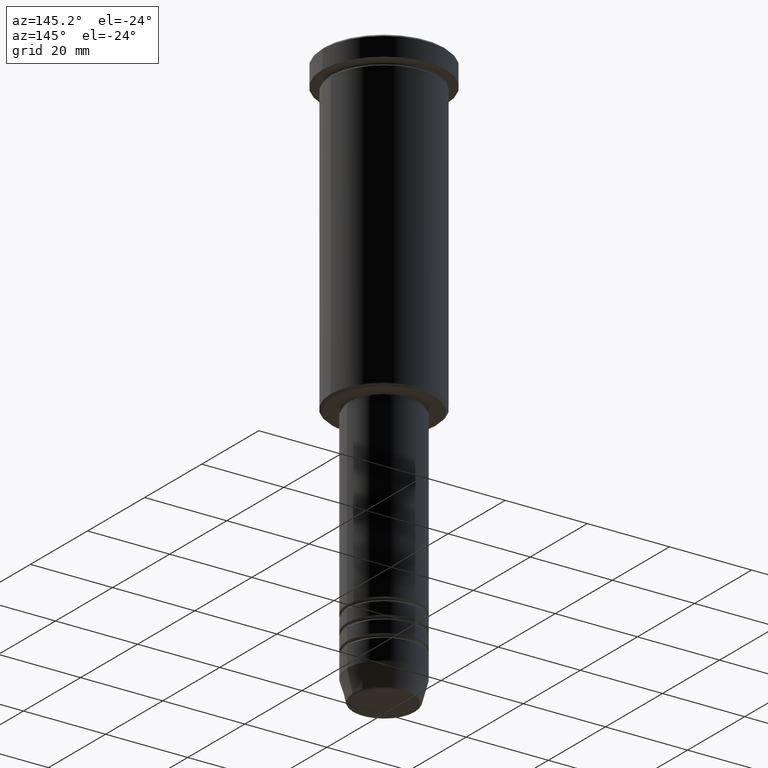
[diagram: clean part render]
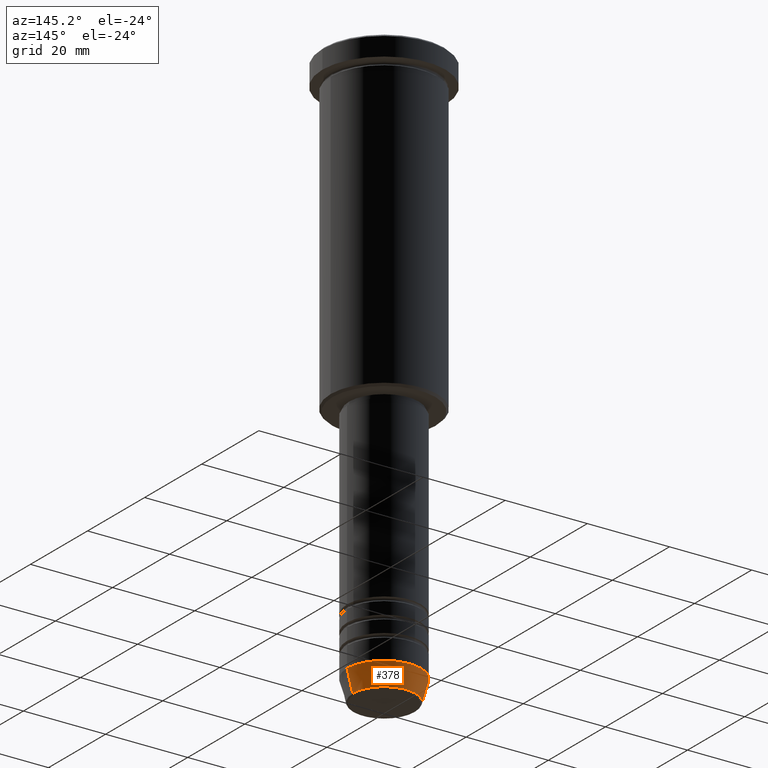
[diagram: same view with one face highlighted and labeled with its STEP entity id]
A machine part, auxiliary view. The second image highlights one B-rep face of the part: STEP entity #378.
In plain terms, the highlighted conical surface has half-angle 15 deg.
Its self-contained STEP definition (entity closure, byte-faithful):
#45 = ORIENTED_EDGE ( 'NONE', *, *, #905, .F. ) ;
#127 = AXIS2_PLACEMENT_3D ( 'NONE', #1026, #653, #947 ) ;
#129 = VECTOR ( 'NONE', #634, 1000.000000000000000 ) ;
#134 = LINE ( 'NONE', #145, #418 ) ;
#145 = CARTESIAN_POINT ( 'NONE',  ( 9.000000000000001776, 0.000000000000000000, -134.5000000000000000 ) ) ;
#146 = CARTESIAN_POINT ( 'NONE',  ( -7.625578860783880586, 1.018023096791544096E-15, -139.6294095225512706 ) ) ;
#177 = LINE ( 'NONE', #542, #129 ) ;
#240 = EDGE_CURVE ( 'NONE', #628, #364, #397, .T. ) ;
#241 = CARTESIAN_POINT ( 'NONE',  ( 0.000000000000000000, 0.000000000000000000, -134.5000000000000000 ) ) ;
#269 = ORIENTED_EDGE ( 'NONE', *, *, #327, .F. ) ;
#300 = CONICAL_SURFACE ( 'NONE', #337, 9.000000000000001776, 0.2617993877991501295 ) ;
#327 = EDGE_CURVE ( 'NONE', #1060, #394, #973, .T. ) ;
#337 = AXIS2_PLACEMENT_3D ( 'NONE', #241, #504, #694 ) ;
#364 = VERTEX_POINT ( 'NONE', #146 ) ;
#378 = ADVANCED_FACE ( 'NONE', ( #788 ), #300, .T. ) ;
#391 = ORIENTED_EDGE ( 'NONE', *, *, #240, .T. ) ;
#394 = VERTEX_POINT ( 'NONE', #602 ) ;
#397 = CIRCLE ( 'NONE', #127, 7.625578860783879698 ) ;
#418 = VECTOR ( 'NONE', #420, 1000.000000000000000 ) ;
#420 = DIRECTION ( 'NONE',  ( 0.2588190451025214056, 0.000000000000000000, 0.9659258262890680902 ) ) ;
#466 = DIRECTION ( 'NONE',  ( -0.000000000000000000, -0.000000000000000000, 1.000000000000000000 ) ) ;
#492 = AXIS2_PLACEMENT_3D ( 'NONE', #856, #466, #764 ) ;
#504 = DIRECTION ( 'NONE',  ( -0.000000000000000000, -0.000000000000000000, 1.000000000000000000 ) ) ;
#542 = CARTESIAN_POINT ( 'NONE',  ( -9.000000000000001776, 1.102182119232617911E-15, -134.5000000000000000 ) ) ;
#596 = EDGE_CURVE ( 'NONE', #364, #394, #177, .T. ) ;
#602 = CARTESIAN_POINT ( 'NONE',  ( -9.000000000000001776, 1.102182119232617911E-15, -134.5000000000000000 ) ) ;
#628 = VERTEX_POINT ( 'NONE', #914 ) ;
#634 = DIRECTION ( 'NONE',  ( -0.2588190451025214056, 3.169619151431772953E-17, 0.9659258262890680902 ) ) ;
#653 = DIRECTION ( 'NONE',  ( -0.000000000000000000, -0.000000000000000000, 1.000000000000000000 ) ) ;
#694 = DIRECTION ( 'NONE',  ( 1.000000000000000000, 0.000000000000000000, 0.000000000000000000 ) ) ;
#732 = EDGE_LOOP ( 'NONE', ( #391, #1155, #269, #45 ) ) ;
#764 = DIRECTION ( 'NONE',  ( 1.000000000000000000, 0.000000000000000000, 0.000000000000000000 ) ) ;
#788 = FACE_OUTER_BOUND ( 'NONE', #732, .T. ) ;
#805 = CARTESIAN_POINT ( 'NONE',  ( 9.000000000000001776, 0.000000000000000000, -134.5000000000000000 ) ) ;
#856 = CARTESIAN_POINT ( 'NONE',  ( 0.000000000000000000, 0.000000000000000000, -134.5000000000000000 ) ) ;
#905 = EDGE_CURVE ( 'NONE', #628, #1060, #134, .T. ) ;
#914 = CARTESIAN_POINT ( 'NONE',  ( 7.625578860783879698, 0.000000000000000000, -139.6294095225512706 ) ) ;
#947 = DIRECTION ( 'NONE',  ( 1.000000000000000000, 0.000000000000000000, 0.000000000000000000 ) ) ;
#973 = CIRCLE ( 'NONE', #492, 9.000000000000001776 ) ;
#1026 = CARTESIAN_POINT ( 'NONE',  ( 0.000000000000000000, 0.000000000000000000, -139.6294095225512706 ) ) ;
#1060 = VERTEX_POINT ( 'NONE', #805 ) ;
#1155 = ORIENTED_EDGE ( 'NONE', *, *, #596, .T. ) ;